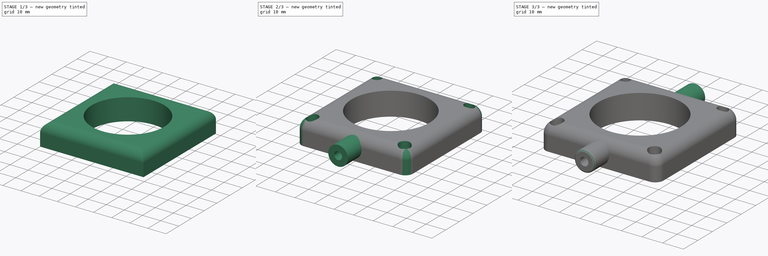
[diagram: build sequence overview — one tinted view per stage of 3, left to right]
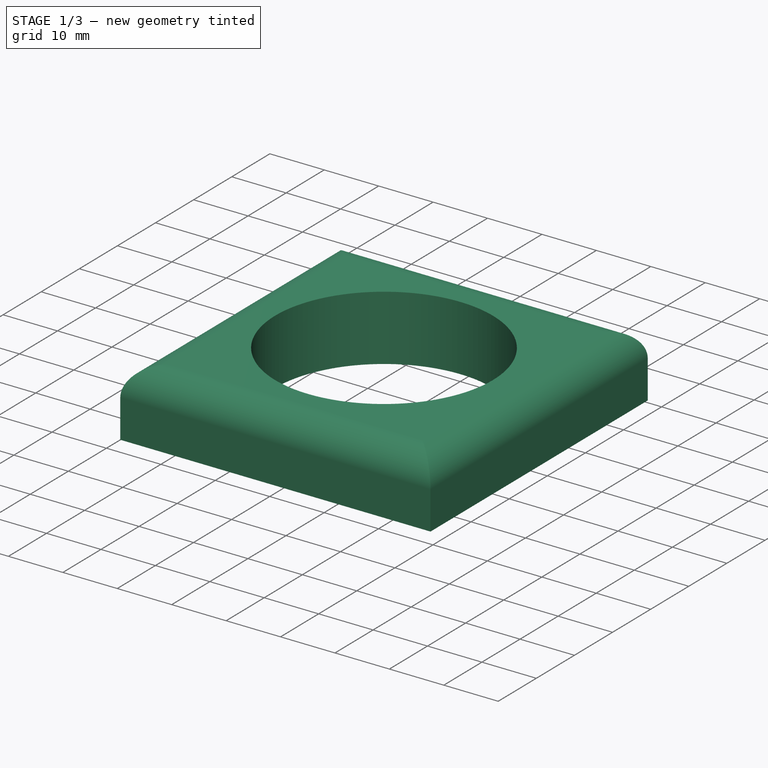
[diagram: stage 1 of 3 — iso view after this stage's code; geometry added in this stage tinted green]
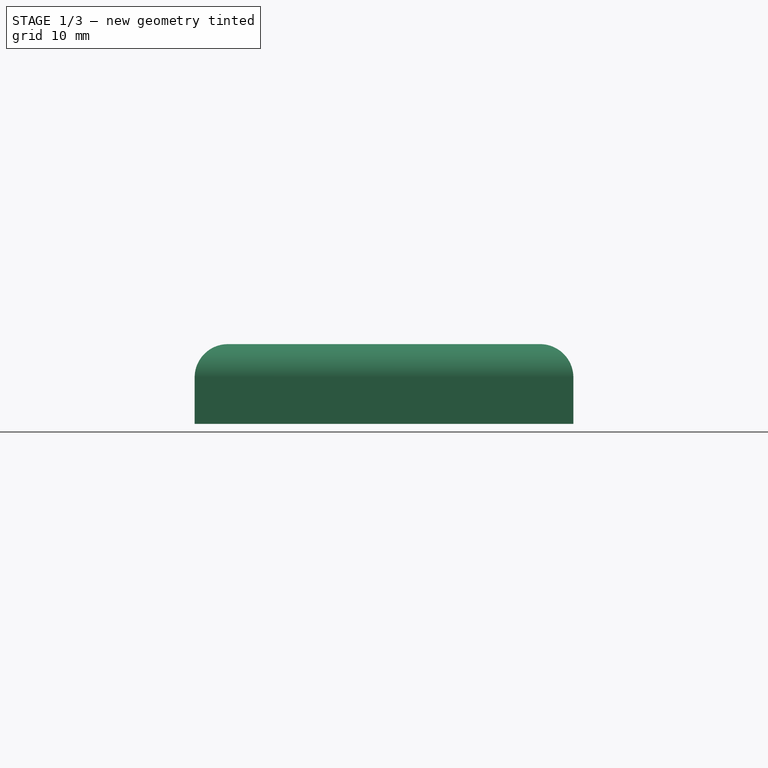
[diagram: stage 1 of 3 — front view after this stage's code; geometry added in this stage tinted green]
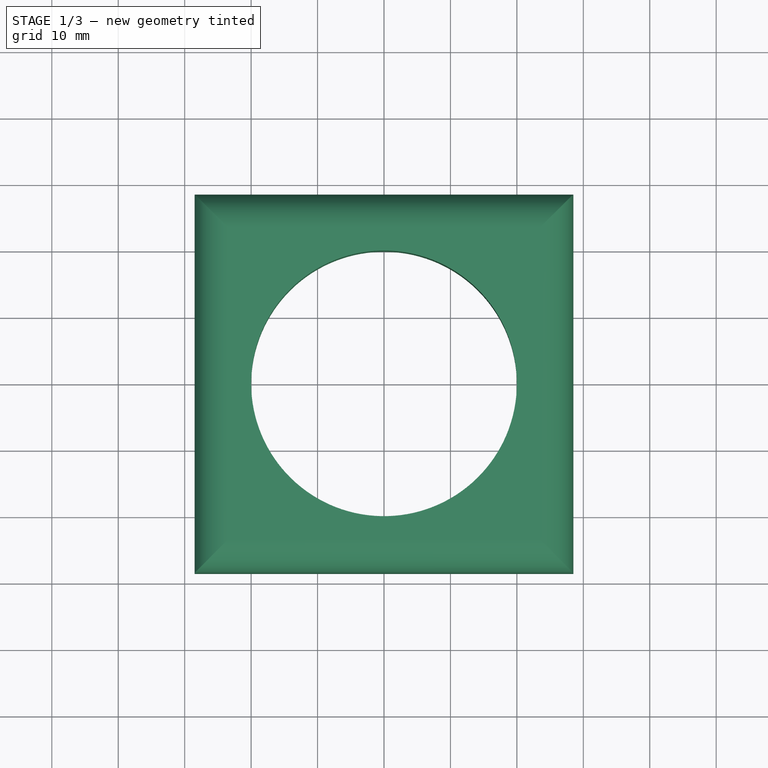
[diagram: stage 1 of 3 — top view after this stage's code; geometry added in this stage tinted green]
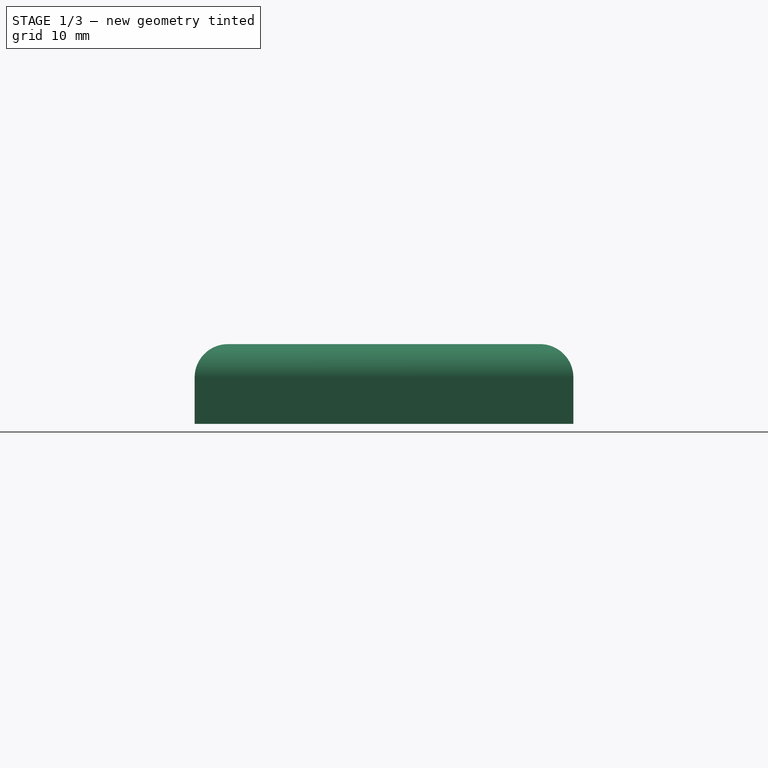
[diagram: stage 1 of 3 — right view after this stage's code; geometry added in this stage tinted green]
FCSTD DOCUMENT  (FreeCAD 0.18R4 (GitTag))
Label: Mount nema23
License: All rights reserved
LicenseURL: http://en.wikipedia.org/wiki/All_rights_reserved
objects: Sketcher::SketchObject×3, PartDesign::Fillet×3, PartDesign::Pad×2, PartDesign::Pocket×1, PartDesign::Mirrored×1, PartDesign::Body×1, App::Part×1
note: 14 computed .brp shape members not serialized (recipe doc carries the construction recipe); baked Part::Feature solids carry a one-line shape summary decoded from their .brp

FEATURE [Sketcher::SketchObject] Sketch
  MapMode = 5
  Support = -> [XY_Plane001]
  sketch-geometry (11):
    g0: LineSegment StartX=-28.5 StartY=28.5 StartZ=0 EndX=28.5 EndY=28.5 EndZ=0
    g1: LineSegment StartX=28.5 StartY=28.5 StartZ=0 EndX=28.5 EndY=-28.5 EndZ=0
    g2: LineSegment StartX=28.5 StartY=-28.5 StartZ=0 EndX=-28.5 EndY=-28.5 EndZ=0
    g3: LineSegment StartX=-28.5 StartY=-28.5 StartZ=0 EndX=-28.5 EndY=28.5 EndZ=0
    g4: Circle CenterX=0 CenterY=0 CenterZ=0 NormalX=0 NormalY=0 NormalZ=1 AngleXU=0 Radius=20
    g5: Circle [constr] CenterX=-23.57 CenterY=23.57 CenterZ=0 NormalX=0 NormalY=0 NormalZ=1 AngleXU=0 Radius=2.5
    g6: Circle [constr] CenterX=23.57 CenterY=23.57 CenterZ=0 NormalX=0 NormalY=0 NormalZ=1 AngleXU=0 Radius=2.5
    g7: Circle [constr] CenterX=23.57 CenterY=-23.57 CenterZ=0 NormalX=0 NormalY=0 NormalZ=1 AngleXU=0 Radius=2.5
    g8: Circle [constr] CenterX=-23.57 CenterY=-23.57 CenterZ=0 NormalX=0 NormalY=0 NormalZ=1 AngleXU=0 Radius=2.5
    g9: LineSegment [constr] StartX=-23.57 StartY=23.57 StartZ=0 EndX=23.57 EndY=23.57 EndZ=0
    g10: LineSegment [constr] StartX=23.57 StartY=-23.57 StartZ=0 EndX=23.57 EndY=23.57 EndZ=0
  constraints (27):
    c: Coincident(g0,g1)
    c: Coincident(g1,g2)
    c: Coincident(g2,g3)
    c: Coincident(g3,g0)
    c: Horizontal(g0)
    c: Horizontal(g2)
    c: Vertical(g1)
    c: Vertical(g3)
    c: Symmetric(g1,g0,g-1)
    c: DistanceX(g0,g0) = 57
    c: Equal(g3,g0)
    c: Coincident(g4,g-1)
    c: Symmetric(g8,g6,g4)
    c: Symmetric(g7,g5,g4)
    c: Vertical(g6,g7)
    c: Equal(g7,g6)
    c: Equal(g6,g5)
    c: Equal(g5,g8)
    c: Radius(g5) = 2.5
    c: Horizontal(g5,g6)
    c: DistanceX(g5,g6) = 47.14
    c: Coincident(g9,g5)
    c: Coincident(g9,g6)
    c: Coincident(g10,g7)
    c: Coincident(g10,g6)
    c: Equal(g9,g10)
    c: Radius(g4) = 20
FEATURE [PartDesign::Pad] Pad
  Length = 12
  Length2 = 100
  Midplane = true
  Profile = -> Sketch
  Refine = true
  Type = 0
FEATURE [PartDesign::Fillet] Fillet
  Base = -> Pad [Edge10,Edge7,Edge4,Edge12]
  BaseFeature = -> Pad
  Radius = 5
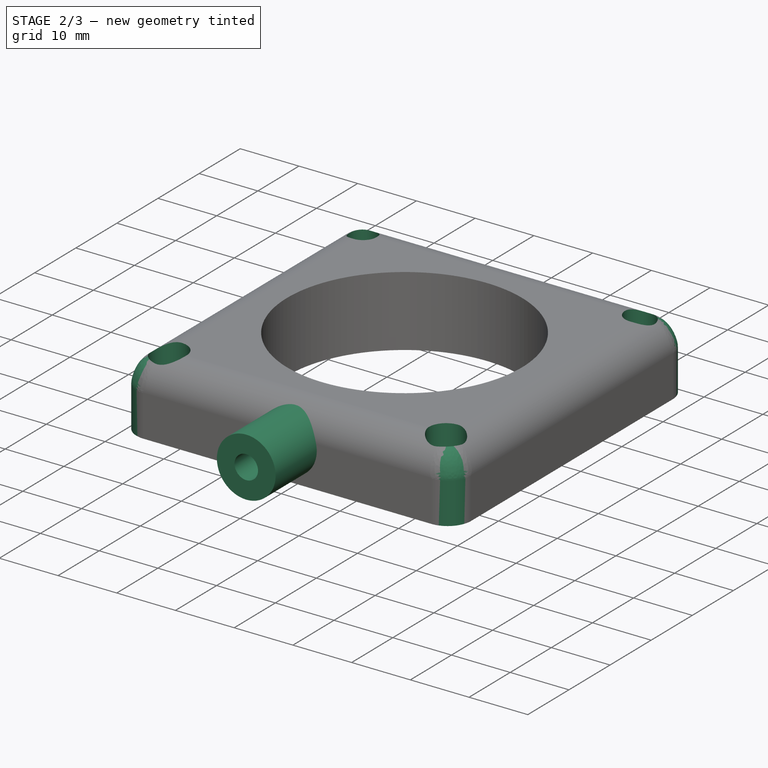
[diagram: stage 2 of 3 — iso view after this stage's code; geometry added in this stage tinted green]
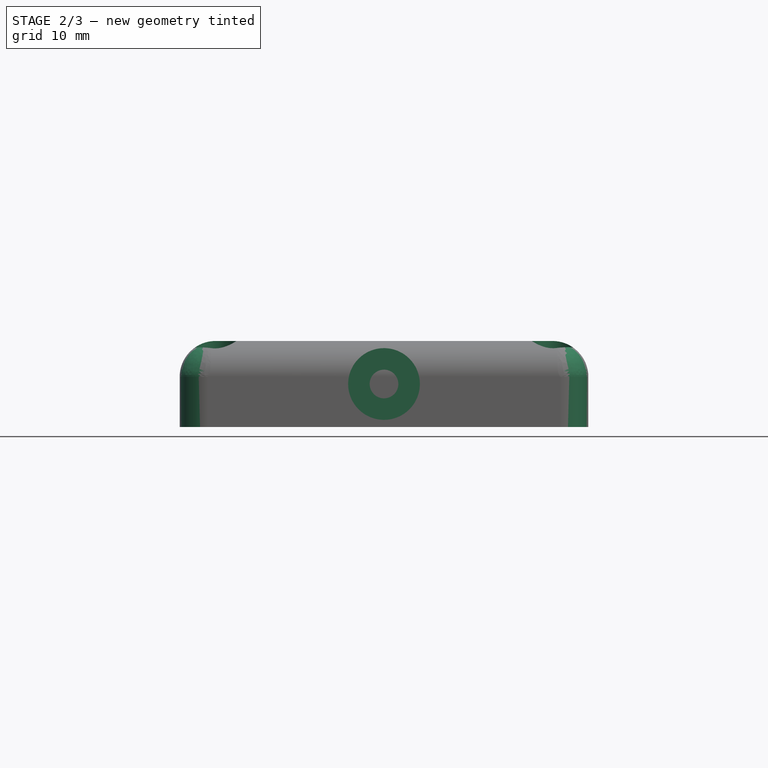
[diagram: stage 2 of 3 — front view after this stage's code; geometry added in this stage tinted green]
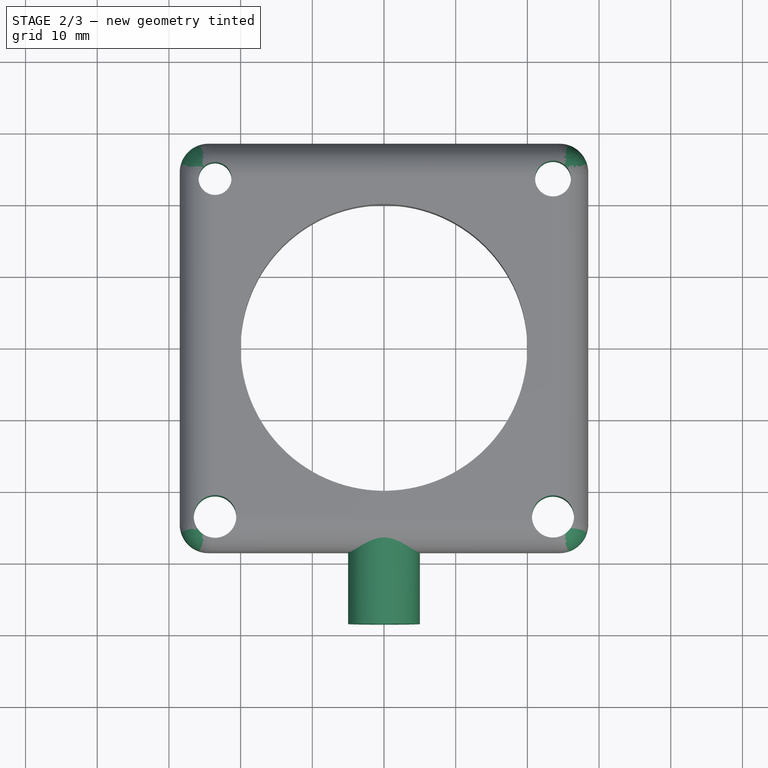
[diagram: stage 2 of 3 — top view after this stage's code; geometry added in this stage tinted green]
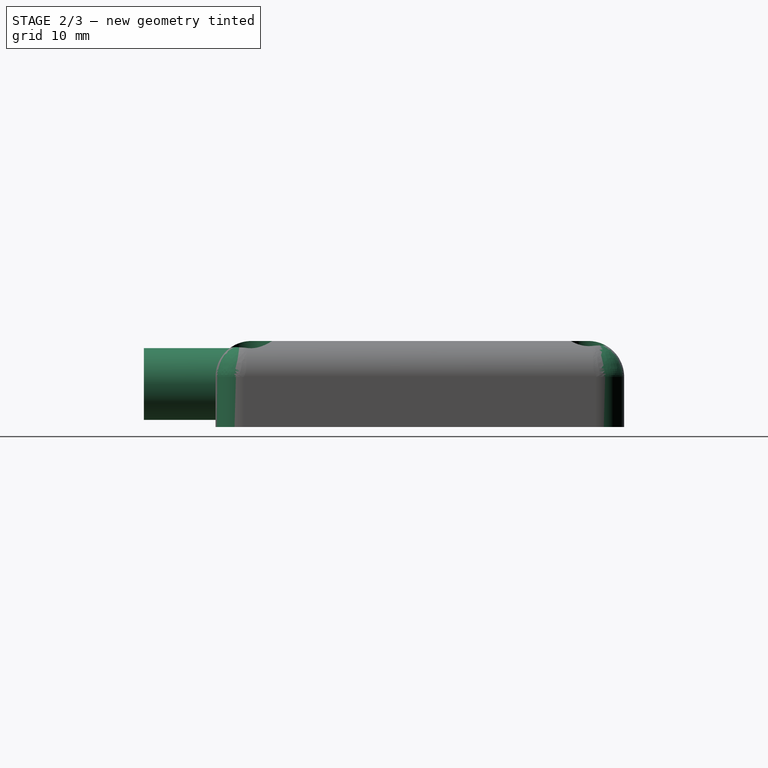
[diagram: stage 2 of 3 — right view after this stage's code; geometry added in this stage tinted green]
FEATURE [PartDesign::Fillet] Fillet001
  Base = -> Fillet [Edge5,Edge15,Edge4,Edge1]
  BaseFeature = -> Fillet
  Radius = 4
FEATURE [Sketcher::SketchObject] Sketch001
  MapMode = 5
  Support = -> [XY_Plane001]
  sketch-geometry (6):
    g0: Circle CenterX=-23.57 CenterY=23.57 CenterZ=0 NormalX=0 NormalY=0 NormalZ=1 AngleXU=0 Radius=2.2936
    g1: Circle CenterX=23.57 CenterY=23.57 CenterZ=0 NormalX=0 NormalY=0 NormalZ=1 AngleXU=0 Radius=2.5
    g2: Circle CenterX=23.57 CenterY=-23.57 CenterZ=0 NormalX=0 NormalY=0 NormalZ=1 AngleXU=0 Radius=2.93724
    g3: Circle CenterX=-23.57 CenterY=-23.57 CenterZ=0 NormalX=0 NormalY=0 NormalZ=1 AngleXU=0 Radius=2.97012
    g4: LineSegment [constr] StartX=23.57 StartY=-23.57 StartZ=0 EndX=23.57 EndY=23.57 EndZ=0
    g5: LineSegment [constr] StartX=-23.57 StartY=23.57 StartZ=0 EndX=23.57 EndY=23.57 EndZ=0
  constraints (11):
    c: Symmetric(g3,g1,g-1)
    c: Symmetric(g0,g2,g-1)
    c: Coincident(g4,g2)
    c: Coincident(g4,g1)
    c: Vertical(g4)
    c: Coincident(g5,g0)
    c: Coincident(g5,g1)
    c: Horizontal(g5)
    c: Equal(g5,g4)
    c: DistanceX(g5,g5) = 47.14
    c: Radius(g1) = 2.5
FEATURE [PartDesign::Pocket] Pocket
  BaseFeature = -> Fillet001
  Length = 15
  Length2 = 100
  Midplane = true
  Profile = -> Sketch001
  Refine = true
  Reversed = true
  Type = 0
FEATURE [Sketcher::SketchObject] Sketch002
  ExternalGeometry = -> [Pocket]
  MapMode = 5
  Placement = pos=(0,-28.5,0) rot=(1,0,0;1.5708rad)
  Support = -> [Pocket]
  sketch-geometry (2):
    g0: Circle CenterX=0 CenterY=0 CenterZ=0 NormalX=0 NormalY=0 NormalZ=1 AngleXU=0 Radius=5
    g1: Circle CenterX=0 CenterY=0 CenterZ=0 NormalX=0 NormalY=0 NormalZ=1 AngleXU=0 Radius=2
  constraints (4):
    c: Radius(g0) = 5
    c: Coincident(g1,g0)
    c: Radius(g1) = 2
    c: Coincident(g0,g-1)
FEATURE [PartDesign::Pad] Pad001
  BaseFeature = -> Pocket
  Length = 10
  Length2 = 8
  Profile = -> Sketch002
  Refine = true
  Type = 4
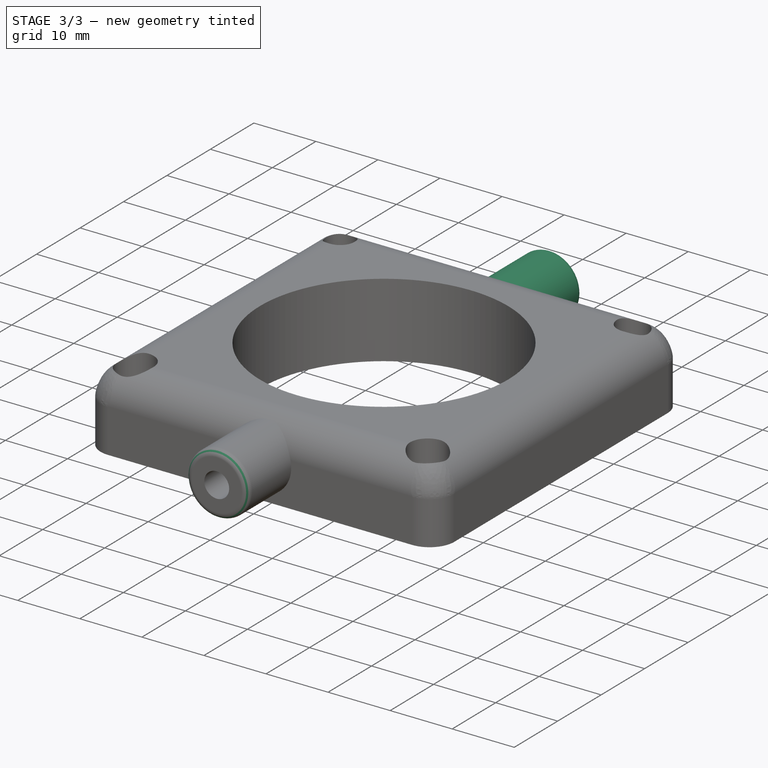
[diagram: stage 3 of 3 — iso view after this stage's code; geometry added in this stage tinted green]
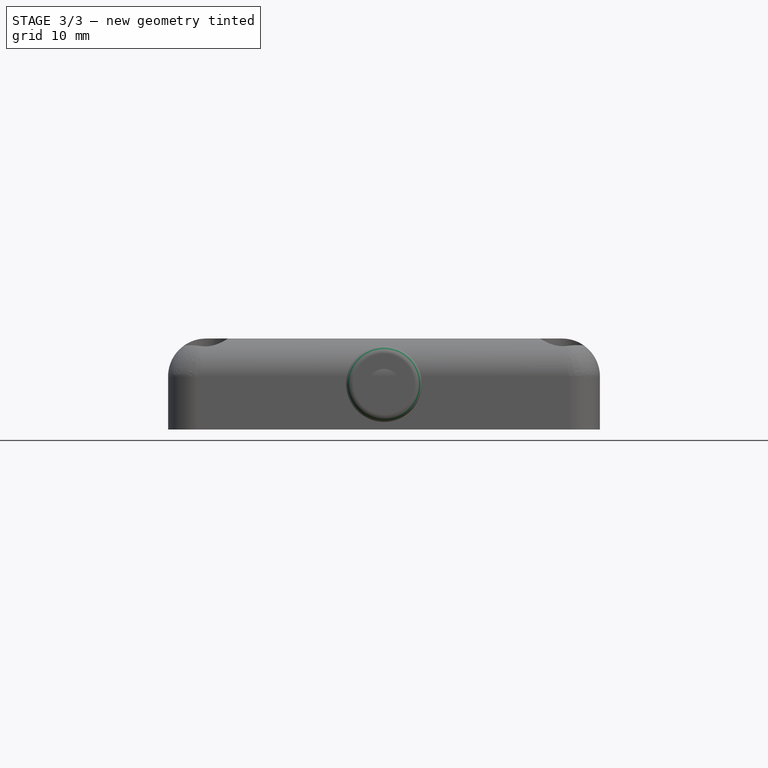
[diagram: stage 3 of 3 — front view after this stage's code; geometry added in this stage tinted green]
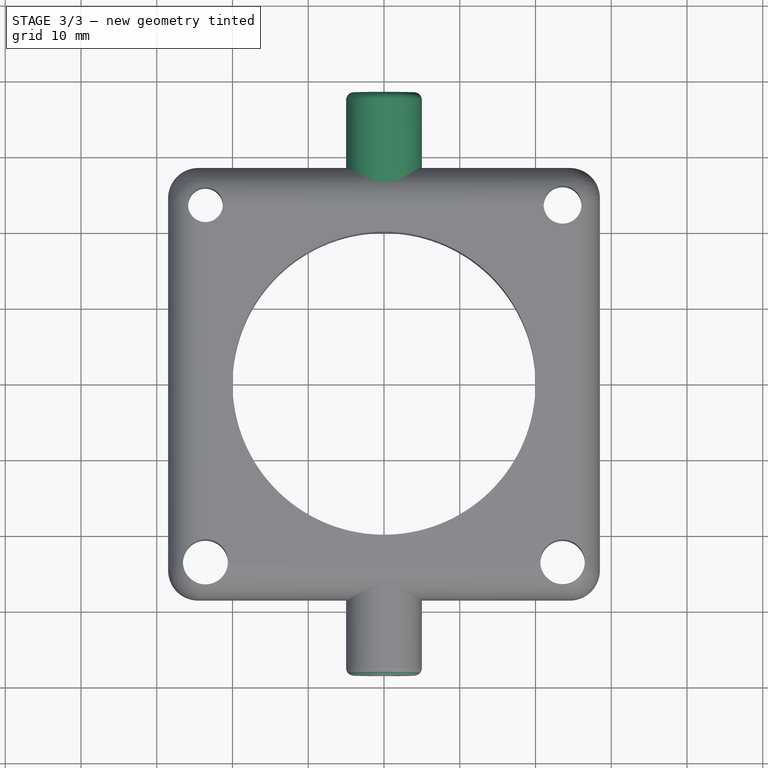
[diagram: stage 3 of 3 — top view after this stage's code; geometry added in this stage tinted green]
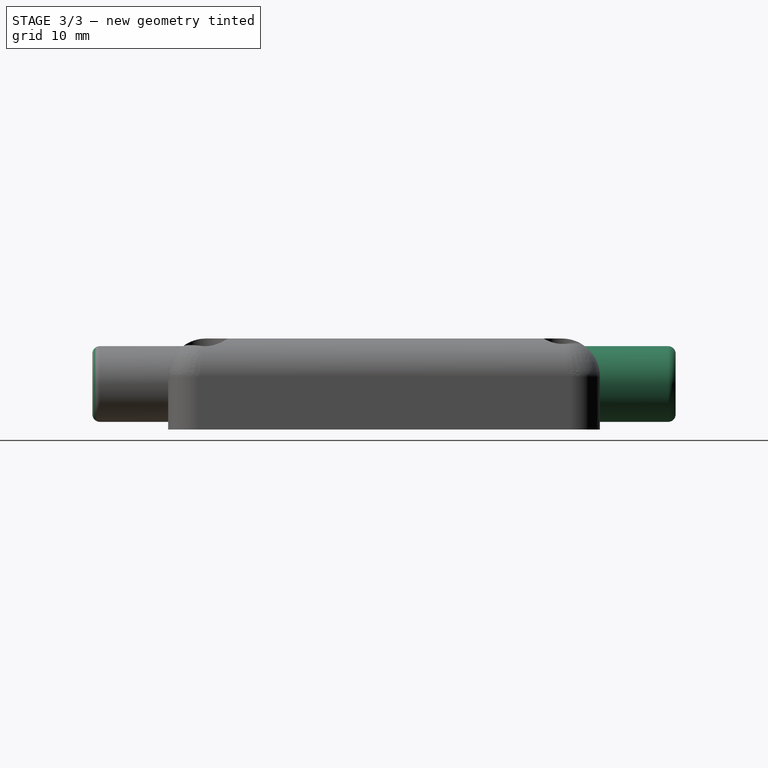
[diagram: stage 3 of 3 — right view after this stage's code; geometry added in this stage tinted green]
FEATURE [PartDesign::Mirrored] Mirrored
  BaseFeature = -> Pad001
  MirrorPlane = -> XZ_Plane001
  Originals = -> [Pad001]
  Refine = true
FEATURE [PartDesign::Fillet] Fillet002
  Base = -> Mirrored [Edge80,Edge32]
  BaseFeature = -> Mirrored
  Radius = 1
FEATURE [PartDesign::Body] Body
  Group = -> [Sketch,Pad,Fillet,Fillet001,Sketch001,Pocket,Sketch002,Pad001,Mirrored,Fillet002]
  Origin = -> Origin001
  Tip = -> Fillet002
FEATURE [App::Part] Part
  Group = -> [Body]
  Origin = -> Origin
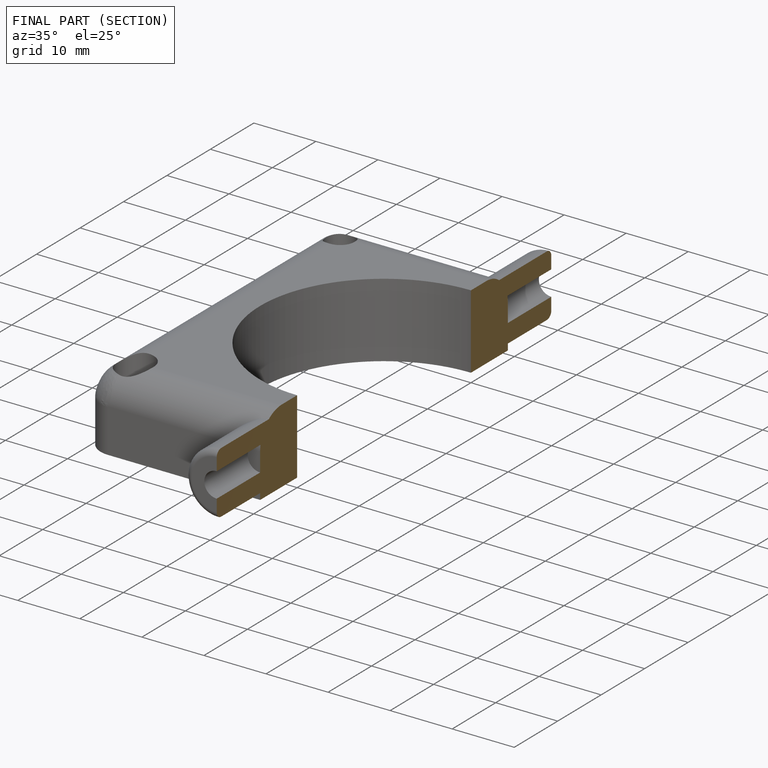
[diagram: finished part — half-section view (interior)]
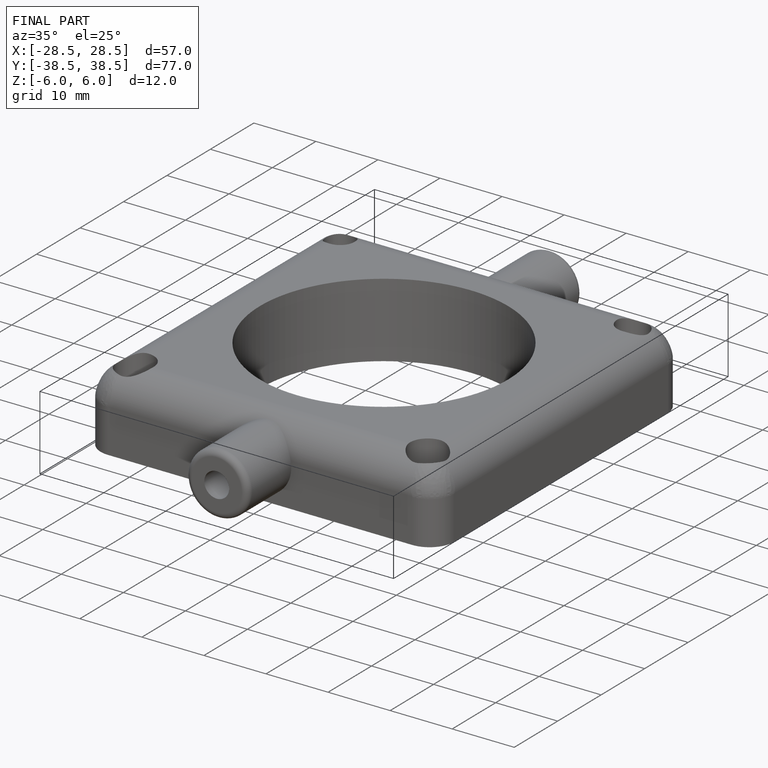
[diagram: finished part — iso view with bounding-box wireframe]
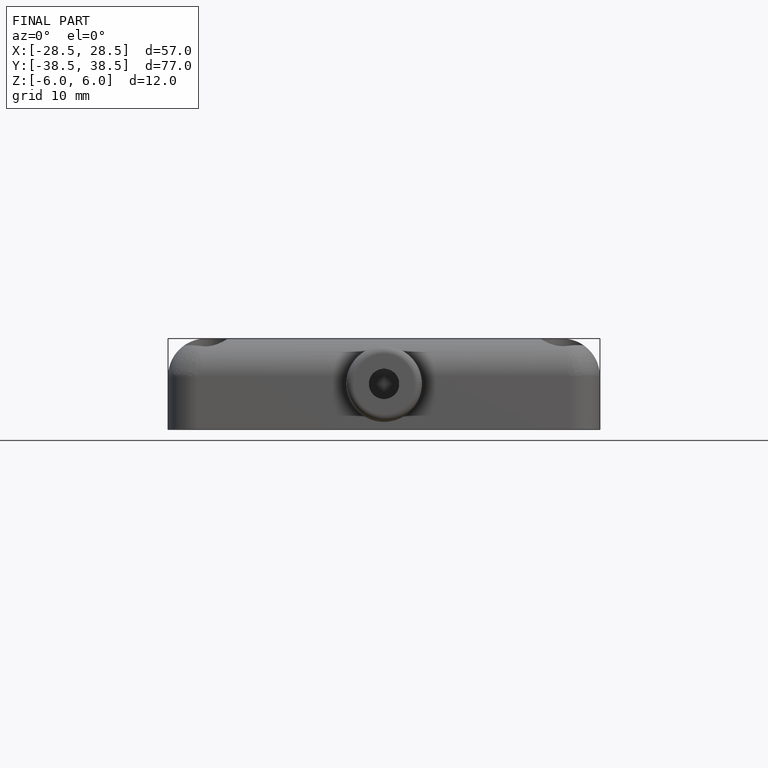
[diagram: finished part — front view with bounding-box wireframe]
